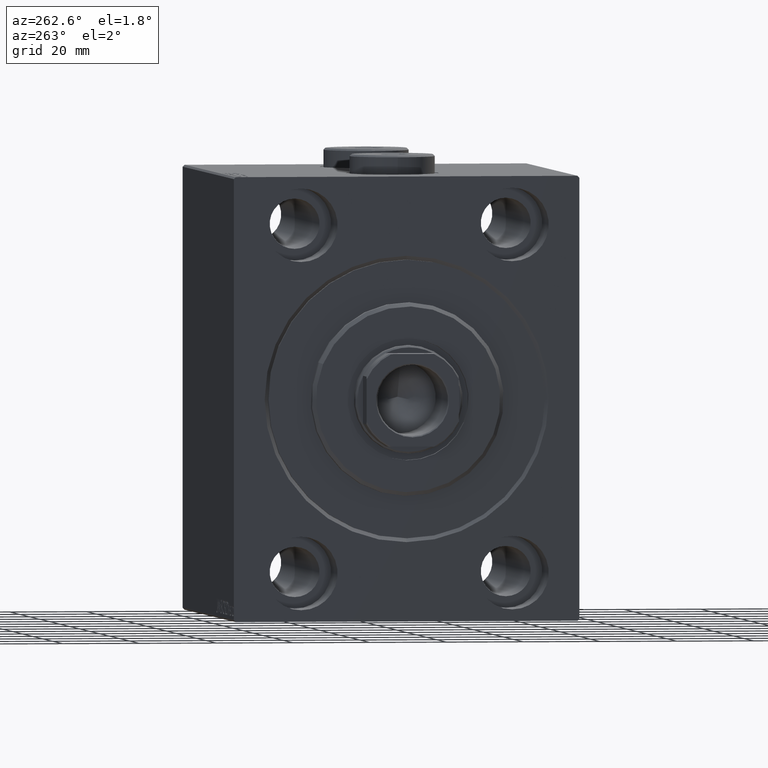
[diagram: clean part render]
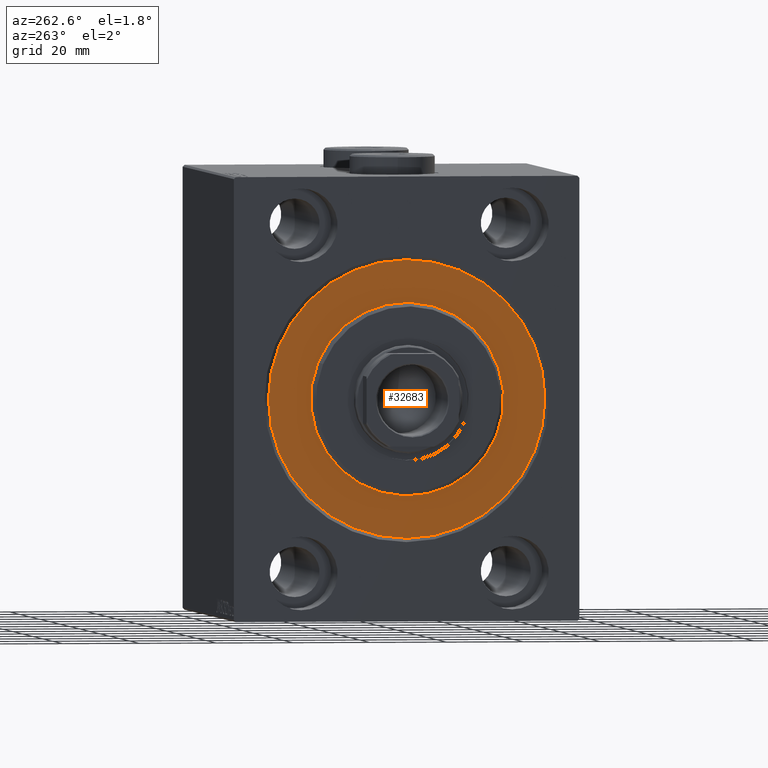
[diagram: same view with one face highlighted and labeled with its STEP entity id]
A machine part, auxiliary view. The second image highlights one B-rep face of the part: STEP entity #32683.
In plain terms, the highlighted planar face has unit normal (1, 0, -0).
Its self-contained STEP definition (entity closure, byte-faithful):
#707 = VERTEX_POINT ( 'NONE', #12917 ) ;
#1086 = EDGE_CURVE ( 'NONE', #707, #40322, #41702, .T. ) ;
#1436 = CARTESIAN_POINT ( 'NONE',  ( 0.000000000000000000, 0.000000000000000000, 0.000000000000000000 ) ) ;
#3275 = DIRECTION ( 'NONE',  ( 0.000000000000000000, 0.000000000000000000, -1.000000000000000000 ) ) ;
#4910 = DIRECTION ( 'NONE',  ( 1.000000000000000000, -0.000000000000000000, 0.000000000000000000 ) ) ;
#5835 = CIRCLE ( 'NONE', #32089, 36.00000000000000000 ) ;
#7226 = FACE_OUTER_BOUND ( 'NONE', #18809, .T. ) ;
#7456 = DIRECTION ( 'NONE',  ( -1.000000000000000000, 0.000000000000000000, 0.000000000000000000 ) ) ;
#7548 = DIRECTION ( 'NONE',  ( 0.000000000000000000, 0.000000000000000000, 1.000000000000000000 ) ) ;
#8180 = AXIS2_PLACEMENT_3D ( 'NONE', #16511, #41598, #3275 ) ;
#8783 = CARTESIAN_POINT ( 'NONE',  ( 0.000000000000000000, 0.000000000000000000, 0.000000000000000000 ) ) ;
#8986 = AXIS2_PLACEMENT_3D ( 'NONE', #8783, #4910, #15633 ) ;
#10435 = FACE_BOUND ( 'NONE', #36273, .T. ) ;
#12917 = CARTESIAN_POINT ( 'NONE',  ( 0.000000000000000000, 0.000000000000000000, 25.00000000000000000 ) ) ;
#13395 = CIRCLE ( 'NONE', #8986, 25.00000000000000000 ) ;
#14522 = PLANE ( 'NONE',  #19943 ) ;
#15633 = DIRECTION ( 'NONE',  ( 0.000000000000000000, 0.000000000000000000, -1.000000000000000000 ) ) ;
#16511 = CARTESIAN_POINT ( 'NONE',  ( 0.000000000000000000, 0.000000000000000000, 0.000000000000000000 ) ) ;
#18809 = EDGE_LOOP ( 'NONE', ( #43935, #44847 ) ) ;
#19348 = CARTESIAN_POINT ( 'NONE',  ( 0.000000000000000000, 0.000000000000000000, -36.00000000000000000 ) ) ;
#19943 = AXIS2_PLACEMENT_3D ( 'NONE', #1436, #7456, #24343 ) ;
#21669 = VERTEX_POINT ( 'NONE', #19348 ) ;
#24262 = AXIS2_PLACEMENT_3D ( 'NONE', #25537, #28524, #7548 ) ;
#24343 = DIRECTION ( 'NONE',  ( 0.000000000000000000, 0.000000000000000000, 1.000000000000000000 ) ) ;
#24794 = DIRECTION ( 'NONE',  ( 0.000000000000000000, 0.000000000000000000, 1.000000000000000000 ) ) ;
#25537 = CARTESIAN_POINT ( 'NONE',  ( 0.000000000000000000, 0.000000000000000000, 0.000000000000000000 ) ) ;
#27601 = CARTESIAN_POINT ( 'NONE',  ( 0.000000000000000000, 4.408728476930470856E-15, 36.00000000000000000 ) ) ;
#28228 = CARTESIAN_POINT ( 'NONE',  ( 0.000000000000000000, 0.000000000000000000, 0.000000000000000000 ) ) ;
#28524 = DIRECTION ( 'NONE',  ( -1.000000000000000000, 0.000000000000000000, 0.000000000000000000 ) ) ;
#31426 = CARTESIAN_POINT ( 'NONE',  ( 0.000000000000000000, 3.061616997868383043E-15, -25.00000000000000000 ) ) ;
#31561 = CIRCLE ( 'NONE', #24262, 36.00000000000000000 ) ;
#31632 = EDGE_CURVE ( 'NONE', #21669, #37440, #31561, .T. ) ;
#32089 = AXIS2_PLACEMENT_3D ( 'NONE', #28228, #42145, #24794 ) ;
#32102 = ORIENTED_EDGE ( 'NONE', *, *, #1086, .F. ) ;
#32321 = EDGE_CURVE ( 'NONE', #40322, #707, #13395, .T. ) ;
#32683 = ADVANCED_FACE ( 'NONE', ( #10435, #7226 ), #14522, .F. ) ;
#36273 = EDGE_LOOP ( 'NONE', ( #32102, #41081 ) ) ;
#37440 = VERTEX_POINT ( 'NONE', #27601 ) ;
#38531 = EDGE_CURVE ( 'NONE', #37440, #21669, #5835, .T. ) ;
#40322 = VERTEX_POINT ( 'NONE', #31426 ) ;
#41081 = ORIENTED_EDGE ( 'NONE', *, *, #32321, .F. ) ;
#41598 = DIRECTION ( 'NONE',  ( 1.000000000000000000, -0.000000000000000000, 0.000000000000000000 ) ) ;
#41702 = CIRCLE ( 'NONE', #8180, 25.00000000000000000 ) ;
#42145 = DIRECTION ( 'NONE',  ( -1.000000000000000000, 0.000000000000000000, 0.000000000000000000 ) ) ;
#43935 = ORIENTED_EDGE ( 'NONE', *, *, #31632, .F. ) ;
#44847 = ORIENTED_EDGE ( 'NONE', *, *, #38531, .F. ) ;